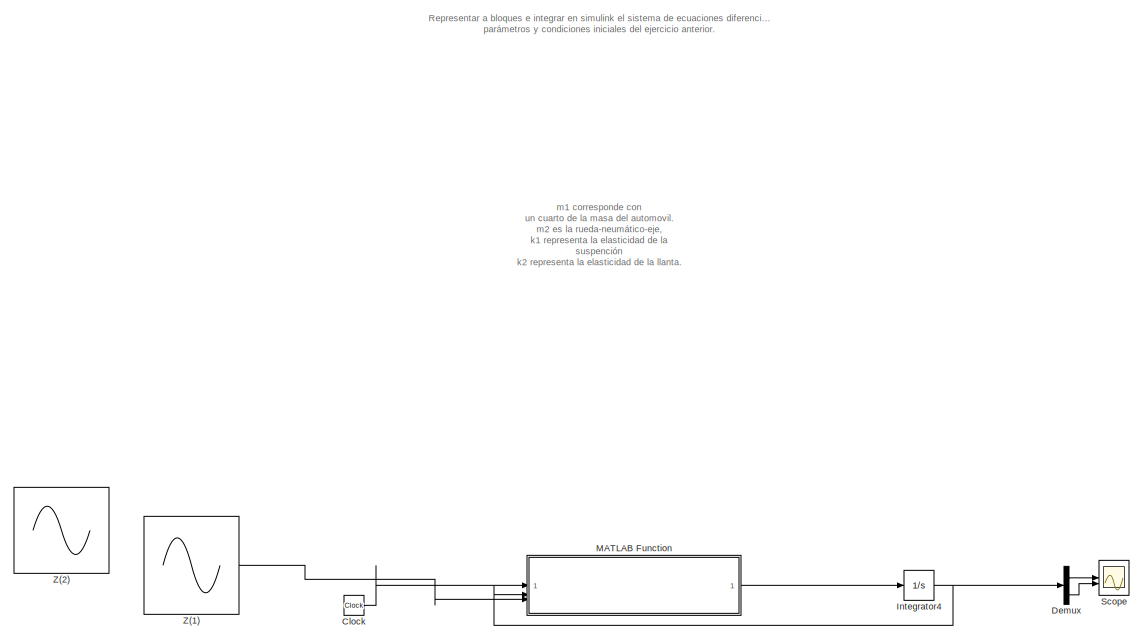
[diagram: root canvas - part 1/4, top left region]
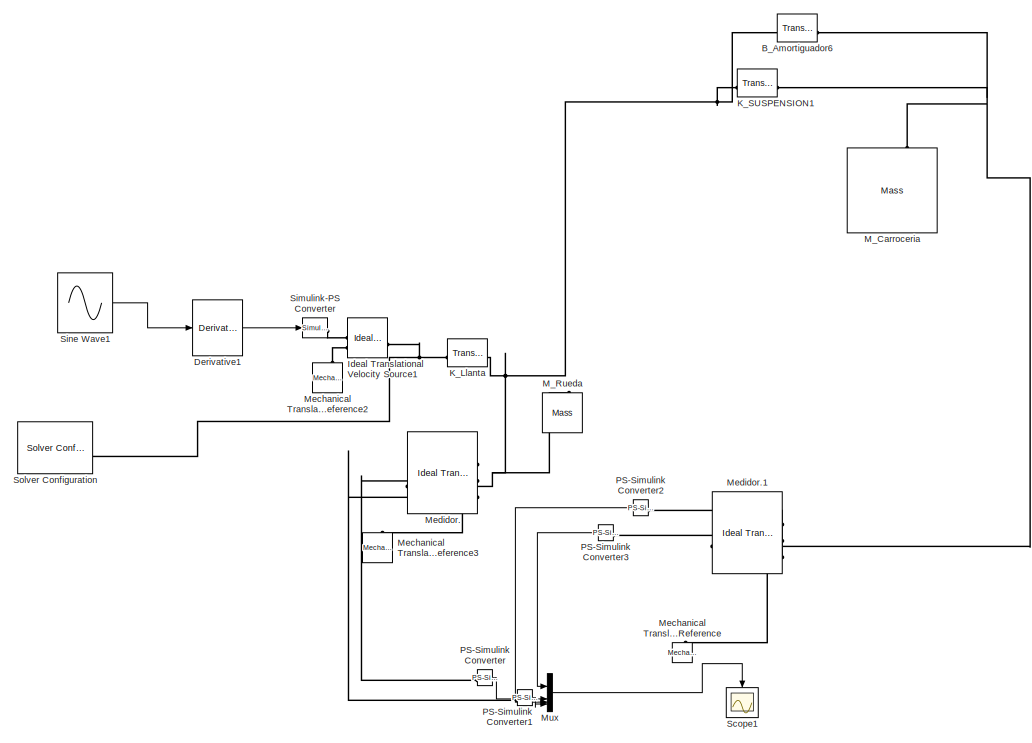
[diagram: root canvas - part 2/4, middle left region]
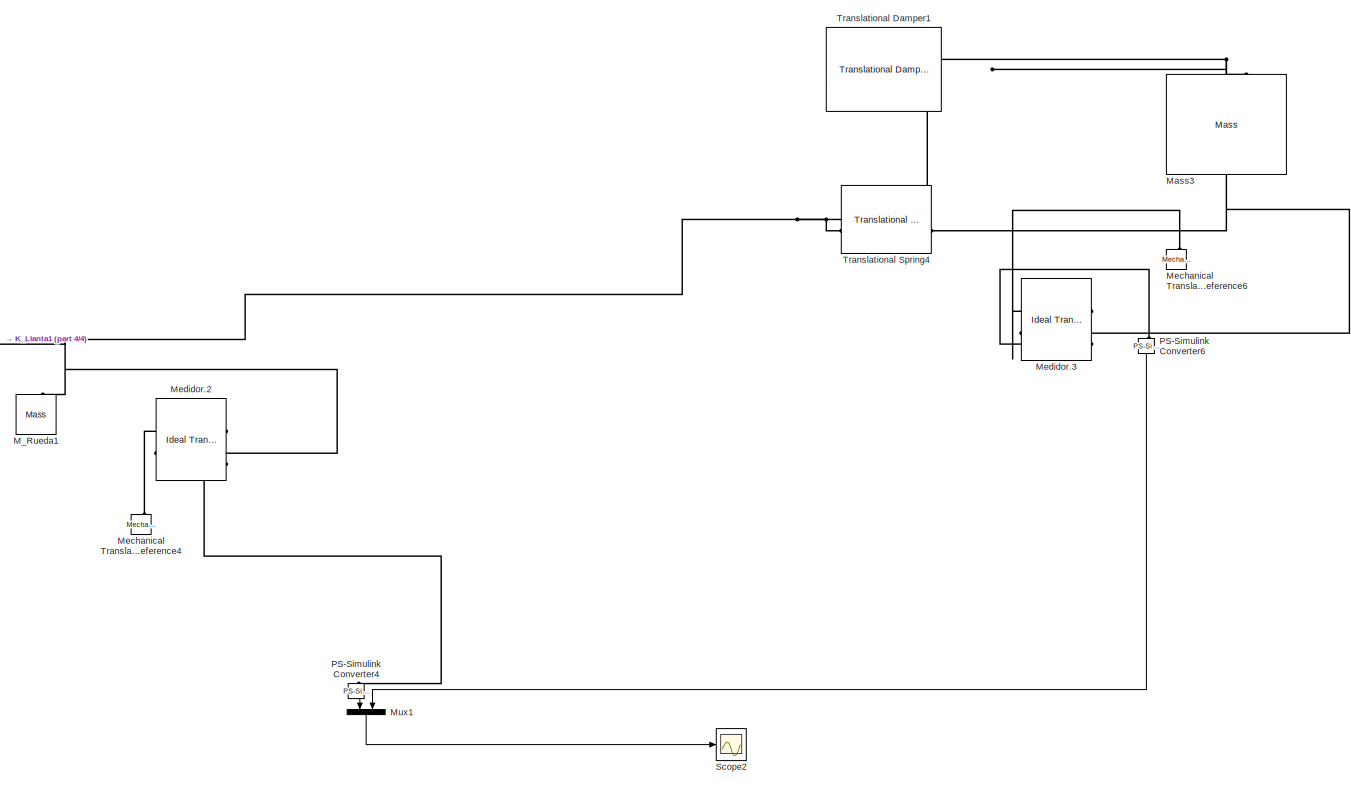
[diagram: root canvas - part 3/4, bottom center region]
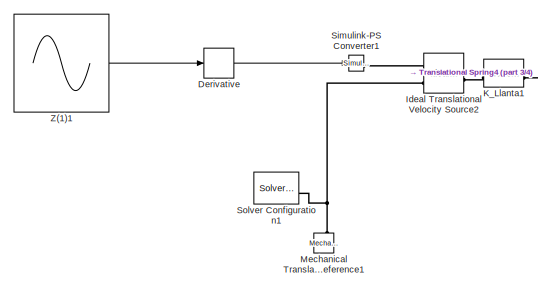
[diagram: root canvas - part 4/4, bottom left region]
MODEL slx_e33aabb2fccb
KIND model
CONFIG AbsTol = auto
CONFIG EnableMultiTasking = off
CONFIG FixedStep = auto
CONFIG MaxStep = auto
CONFIG MinStep = auto
CONFIG RelTol = 1e-3
CONFIG SampleTimeConstraint = Unconstrained
CONFIG SolverName = ode23t
CONFIG StartTime = 0.0
CONFIG StopTime = 10
BLOCK [Reference] B_Amortiguador6  REF=fl_lib/Mechanical/Translational
Elements/Translational Damper
  NameLocation = right
  SourceBlock = fl_lib/Mechanical/Translational\nElements/Translational Damper
  SourceType = Translational Damper
BLOCK [Clock] Clock
BLOCK [Demux] Demux
BLOCK [Derivative] Derivative
BLOCK [Derivative] Derivative1
BLOCK [Reference] Ideal Translational Velocity Source1  REF=fl_lib/Mechanical/Mechanical Sources/Ideal Translational
Velocity Source
  SourceBlock = fl_lib/Mechanical/Mechanical Sources/Ideal Translational\nVelocity Source
  SourceType = Ideal Translational\nVelocity Source
BLOCK [Reference] Ideal Translational Velocity Source2  REF=fl_lib/Mechanical/Mechanical Sources/Ideal Translational
Velocity Source
  SourceBlock = fl_lib/Mechanical/Mechanical Sources/Ideal Translational\nVelocity Source
  SourceType = Ideal Translational\nVelocity Source
BLOCK [Integrator] Integrator4
  InitialCondition = [0; 0; 0; 0]
BLOCK [Reference] K_Llanta  REF=fl_lib/Mechanical/Translational
Elements/Translational Spring
  SourceBlock = fl_lib/Mechanical/Translational\nElements/Translational Spring
  SourceType = Translational Spring
BLOCK [Reference] K_Llanta1  REF=fl_lib/Mechanical/Translational
Elements/Translational Spring
  SourceBlock = fl_lib/Mechanical/Translational\nElements/Translational Spring
  SourceType = Translational Spring
BLOCK [Reference] K_SUSPENSION1  REF=fl_lib/Mechanical/Translational
Elements/Translational Spring
  SourceBlock = fl_lib/Mechanical/Translational\nElements/Translational Spring
  SourceType = Translational Spring
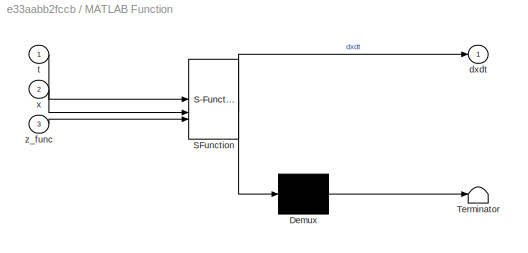
BLOCK [SubSystem] MATLAB Function
  ErrorFcn = Stateflow.Translate.translate
  PermitHierarchicalResolution = ExplicitOnly
  SFBlockType = MATLAB Function
  TreatAsAtomicUnit = on
BLOCK [Demux] MATLAB Function/ Demux 
  Outputs = 1
BLOCK [S-Function] MATLAB Function/ SFunction 
  EnableBusSupport = off
  FunctionName = sf_sfun
  PortCounts = [3 2]
  SFcnIsStateOwnerBlock = off
  SFunctionDeploymentMode = off
  Tag = Stateflow S-Function 2
BLOCK [Terminator] MATLAB Function/ Terminator 
BLOCK [Outport] MATLAB Function/dxdt
BLOCK [Inport] MATLAB Function/t
BLOCK [Inport] MATLAB Function/x
  Port = 2
BLOCK [Inport] MATLAB Function/z_func
  Port = 3
BLOCK [Reference] M_Carroceria  REF=fl_lib/Mechanical/Translational
Elements/Mass
  NameLocation = right
  SourceBlock = fl_lib/Mechanical/Translational\nElements/Mass
  SourceType = Mass
BLOCK [Reference] M_Rueda  REF=fl_lib/Mechanical/Translational
Elements/Mass
  NameLocation = right
  SourceBlock = fl_lib/Mechanical/Translational\nElements/Mass
  SourceType = Mass
BLOCK [Reference] M_Rueda1  REF=fl_lib/Mechanical/Translational
Elements/Mass
  NameLocation = right
  SourceBlock = fl_lib/Mechanical/Translational\nElements/Mass
  SourceType = Mass
BLOCK [Reference] Mass3  REF=fl_lib/Mechanical/Translational
Elements/Mass
  NameLocation = right
  SourceBlock = fl_lib/Mechanical/Translational\nElements/Mass
  SourceType = Mass
BLOCK [Reference] Mechanical Translational Reference  REF=fl_lib/Mechanical/Translational
Elements/Mechanical
Translational
Reference
  NameLocation = right
  SourceBlock = fl_lib/Mechanical/Translational\nElements/Mechanical\nTranslational\nReference
  SourceType = Mechanical\nTranslational\nReference
BLOCK [Reference] Mechanical Translational Reference1  REF=fl_lib/Mechanical/Translational
Elements/Mechanical
Translational
Reference
  NameLocation = right
  SourceBlock = fl_lib/Mechanical/Translational\nElements/Mechanical\nTranslational\nReference
  SourceType = Mechanical\nTranslational\nReference
BLOCK [Reference] Mechanical Translational Reference2  REF=fl_lib/Mechanical/Translational
Elements/Mechanical
Translational
Reference
  NameLocation = right
  SourceBlock = fl_lib/Mechanical/Translational\nElements/Mechanical\nTranslational\nReference
  SourceType = Mechanical\nTranslational\nReference
BLOCK [Reference] Mechanical Translational Reference3  REF=fl_lib/Mechanical/Translational
Elements/Mechanical
Translational
Reference
  NameLocation = right
  SourceBlock = fl_lib/Mechanical/Translational\nElements/Mechanical\nTranslational\nReference
  SourceType = Mechanical\nTranslational\nReference
BLOCK [Reference] Mechanical Translational Reference4  REF=fl_lib/Mechanical/Translational
Elements/Mechanical
Translational
Reference
  NameLocation = right
  SourceBlock = fl_lib/Mechanical/Translational\nElements/Mechanical\nTranslational\nReference
  SourceType = Mechanical\nTranslational\nReference
BLOCK [Reference] Mechanical Translational Reference6  REF=fl_lib/Mechanical/Translational
Elements/Mechanical
Translational
Reference
  NameLocation = right
  SourceBlock = fl_lib/Mechanical/Translational\nElements/Mechanical\nTranslational\nReference
  SourceType = Mechanical\nTranslational\nReference
BLOCK [Reference] Medidor.  REF=fl_lib/Mechanical/Mechanical Sensors/Ideal Translational
Motion Sensor
  NameLocation = top
  SourceBlock = fl_lib/Mechanical/Mechanical Sensors/Ideal Translational\nMotion Sensor
  SourceType = Ideal Translational\nMotion Sensor
BLOCK [Reference] Medidor.1  REF=fl_lib/Mechanical/Mechanical Sensors/Ideal Translational
Motion Sensor
  NameLocation = top
  SourceBlock = fl_lib/Mechanical/Mechanical Sensors/Ideal Translational\nMotion Sensor
  SourceType = Ideal Translational\nMotion Sensor
BLOCK [Reference] Medidor.2  REF=fl_lib/Mechanical/Mechanical Sensors/Ideal Translational
Motion Sensor
  NameLocation = top
  SourceBlock = fl_lib/Mechanical/Mechanical Sensors/Ideal Translational\nMotion Sensor
  SourceType = Ideal Translational\nMotion Sensor
BLOCK [Reference] Medidor.3  REF=fl_lib/Mechanical/Mechanical Sensors/Ideal Translational
Motion Sensor
  NameLocation = top
  SourceBlock = fl_lib/Mechanical/Mechanical Sensors/Ideal Translational\nMotion Sensor
  SourceType = Ideal Translational\nMotion Sensor
BLOCK [Mux] Mux
  DisplayOption = bar
BLOCK [Mux] Mux1
  DisplayOption = bar
  Inputs = 2
  NameLocation = left
BLOCK [Reference] PS-Simulink Converter  REF=nesl_utility/PS-Simulink
Converter
  SourceBlock = nesl_utility/PS-Simulink\nConverter
  SourceType = PS-Simulink\nConverter
BLOCK [Reference] PS-Simulink Converter1  REF=nesl_utility/PS-Simulink
Converter
  SourceBlock = nesl_utility/PS-Simulink\nConverter
  SourceType = PS-Simulink\nConverter
BLOCK [Reference] PS-Simulink Converter2  REF=nesl_utility/PS-Simulink
Converter
  NameLocation = top
  SourceBlock = nesl_utility/PS-Simulink\nConverter
  SourceType = PS-Simulink\nConverter
BLOCK [Reference] PS-Simulink Converter3  REF=nesl_utility/PS-Simulink
Converter
  NameLocation = top
  SourceBlock = nesl_utility/PS-Simulink\nConverter
  SourceType = PS-Simulink\nConverter
BLOCK [Reference] PS-Simulink Converter4  REF=nesl_utility/PS-Simulink
Converter
  NameLocation = left
  SourceBlock = nesl_utility/PS-Simulink\nConverter
  SourceType = PS-Simulink\nConverter
BLOCK [Reference] PS-Simulink Converter6  REF=nesl_utility/PS-Simulink
Converter
  NameLocation = left
  SourceBlock = nesl_utility/PS-Simulink\nConverter
  SourceType = PS-Simulink\nConverter
BLOCK [Scope] Scope
  ActiveDisplayYMaximum = 0.068675886807107581
  ActiveDisplayYMinimum = -0.061836360748085892
  Floating = off
  GraphicalSettings = {"Style":{"BackgroundColor":[0.12941176470588237,0.12941176470588237,0.12941176470588237],"AxesColor":[0.07058823529411765,0.07058823529411765,0.07058823529411765],"LabelsColor":[0.8509803921568627,0.8509803921568627,0.8509803921568627],"PreserveColors":false,"Visible":[true,true],"LineStyle":["-","-"],"LineWidth":[1.5,1.5],"BarWidth":[0.9,0.9],"LineColor":["auto","auto"],"LineFaceAlpha":[1,1],"Li...<+2118ch>
  MultipleDisplayCache = [{"MaxYLimMag":0.01417703135031353,"MaxYLimReal":0.068675886807107581,"MinYLimMag":0,"MinYLimReal":-0.061836360748085892,"PlotAsMagnitudePhase":false,"ShowGrid":true,"ShowLegend":true,"Title":"%<SignalLabel>","YLabel":""}]
  NumInputPorts = 2
  ScopeFrameLocation = window
  ShowLegend = on
  WasSavedAsWebScope = on
  WindowPosition = [133.000000,205.000000,560.000000,443.000000,]
BLOCK [Scope] Scope1
  ActiveDisplayYMaximum = 1.2249002368293782
  ActiveDisplayYMinimum = -1.0241021314644039
  DataLoggingVariableName = ScopeData1
  Floating = off
  GraphicalSettings = {"Style":{"BackgroundColor":[0.12941176470588237,0.12941176470588237,0.12941176470588237],"AxesColor":[0.07058823529411765,0.07058823529411765,0.07058823529411765],"LabelsColor":[0.8509803921568627,0.8509803921568627,0.8509803921568627],"PreserveColors":false,"Visible":[true,true,false,false],"LineStyle":["-","-","-","-"],"LineWidth":[1.5,1.5,1.5,1.5],"BarWidth":[0.9,0.9,0.9,0.9],"LineColor":["aut...<+2462ch>
  MultipleDisplayCache = [{"MaxYLimMag":1.2249002368293782,"MaxYLimReal":1.2249002368293782,"MinYLimMag":0,"MinYLimReal":-1.0241021314644039,"PlotAsMagnitudePhase":false,"ShowGrid":true,"ShowLegend":true,"Title":"%<SignalLabel>","YLabel":""}]
  NameLocation = left
  NumInputPorts = 1
  ScopeFrameLocation = window
  ShowLegend = on
  WasSavedAsWebScope = on
  WindowPosition = [247.000000,290.000000,560.000000,420.000000,]
BLOCK [Scope] Scope2
  ActiveDisplayYMaximum = 0.10067538321812189
  ActiveDisplayYMinimum = -0.12212269763999509
  DataLoggingVariableName = ScopeData2
  Floating = off
  GraphicalSettings = {"Style":{"BackgroundColor":[0.12941176470588237,0.12941176470588237,0.12941176470588237],"AxesColor":[0.07058823529411765,0.07058823529411765,0.07058823529411765],"LabelsColor":[0.8509803921568627,0.8509803921568627,0.8509803921568627],"PreserveColors":false,"Visible":[true,true],"LineStyle":["-","-"],"LineWidth":[1.5,1.5],"BarWidth":[0.9,0.9],"LineColor":["auto","auto"],"LineFaceAlpha":[1,1],"Li...<+2178ch>
  MultipleDisplayCache = [{"MaxYLimMag":0.080687265846649786,"MaxYLimReal":0.10067538321812189,"MinYLimMag":0,"MinYLimReal":-0.12212269763999509,"PlotAsMagnitudePhase":false,"ShowGrid":true,"ShowLegend":true,"Title":"%<SignalLabel>","YLabel":""}]
  NumInputPorts = 1
  ScopeFrameLocation = window
  ShowLegend = on
  WasSavedAsWebScope = on
  WindowPosition = [717.000000,168.000000,560.000000,420.000000,]
BLOCK [Reference] Simulink-PS Converter  REF=nesl_utility/Simulink-PS
Converter
  SourceBlock = nesl_utility/Simulink-PS\nConverter
  SourceType = Simulink-PS\nConverter
BLOCK [Reference] Simulink-PS Converter1  REF=nesl_utility/Simulink-PS
Converter
  SourceBlock = nesl_utility/Simulink-PS\nConverter
  SourceType = Simulink-PS\nConverter
BLOCK [Sin] Sine Wave1
  Amplitude = 0.05
  Frequency = 20*pi
  SampleTime = 0
BLOCK [Reference] Solver Configuration  REF=nesl_utility/Solver
Configuration
  SourceBlock = nesl_utility/Solver\nConfiguration
  SourceType = Solver\nConfiguration
BLOCK [Reference] Solver Configuration1  REF=nesl_utility/Solver
Configuration
  SourceBlock = nesl_utility/Solver\nConfiguration
  SourceType = Solver\nConfiguration
BLOCK [Reference] Translational Damper1  REF=fl_lib/Mechanical/Translational
Elements/Translational Damper
  NameLocation = top
  SourceBlock = fl_lib/Mechanical/Translational\nElements/Translational Damper
  SourceType = Translational Damper
BLOCK [Reference] Translational Spring4  REF=fl_lib/Mechanical/Translational
Elements/Translational Spring
  NameLocation = top
  SourceBlock = fl_lib/Mechanical/Translational\nElements/Translational Spring
  SourceType = Translational Spring
BLOCK [Sin] Z(1)
  Amplitude = 0.05
  Frequency = 0.5*pi
  SampleTime = 0
BLOCK [Sin] Z(1)1
  Amplitude = 0.05
  Frequency = 0.5*pi
  SampleTime = 0
BLOCK [Sin] Z(2)
  Amplitude = 0.05
  Frequency = 62.8319
  SampleTime = 0
ANNOTATION (root): m1 corresponde con un cuarto de la masa del automovil. m2 es la rueda-neumático-eje, k1 representa la elasticidad de la suspención k2 representa la elasticidad de la llanta. z(t) es una entrada que es el desplazamiento vertical producido por la superficie del camino. f es la fuerza del actuador aplicada entre la carrocería del automóvil
ANNOTATION (root): Representar a bloques e integrar en simulink el sistema de ecuaciones diferenciales (1), tomando los mismos parámetros y condiciones iniciales del ejercicio anterior.
LINE Clock:1 -> MATLAB Function:1
LINE Demux:1 -> Scope:1
LINE Demux:3 -> Scope:2
LINE Derivative1:1 -> Simulink-PS Converter:1
LINE Derivative:1 -> Simulink-PS Converter1:1
NET Integrator4:1 -> Demux:1, MATLAB Function:2
LINE MATLAB Function:1 -> Integrator4:1
LINE Mux1:1 -> Scope2:1
LINE Mux:1 -> Scope1:1
LINE PS-Simulink Converter1:1 -> Mux:4
LINE PS-Simulink Converter2:1 -> Mux:3
LINE PS-Simulink Converter3:1 -> Mux:1
LINE PS-Simulink Converter4:1 -> Mux1:1
LINE PS-Simulink Converter6:1 -> Mux1:2
LINE PS-Simulink Converter:1 -> Mux:2
LINE Sine Wave1:1 -> Derivative1:1
LINE Z(1)1:1 -> Derivative:1
LINE Z(1):1 -> MATLAB Function:3
PNET net1: B_Amortiguador6:LConn1 -- K_Llanta:RConn1 -- K_SUSPENSION1:LConn1 -- M_Rueda:LConn1 -- Medidor.:LConn1
PNET net2: B_Amortiguador6:RConn1 -- K_SUSPENSION1:RConn1 -- M_Carroceria:LConn1 -- Medidor.1:LConn1
PNET net3: Ideal Translational Velocity Source1:LConn1 -- K_Llanta:LConn1 -- Solver Configuration:RConn1
PLINE Ideal Translational Velocity Source1:RConn1 -- Simulink-PS Converter:RConn1
PLINE Ideal Translational Velocity Source1:RConn2 -- Mechanical Translational Reference2:LConn1
PLINE Ideal Translational Velocity Source2:LConn1 -- K_Llanta1:LConn1
PLINE Ideal Translational Velocity Source2:RConn1 -- Simulink-PS Converter1:RConn1
PNET net4: Ideal Translational Velocity Source2:RConn2 -- Mechanical Translational Reference1:LConn1 -- Solver Configuration1:RConn1
PNET net5: K_Llanta1:RConn1 -- M_Rueda1:LConn1 -- Medidor.2:LConn1 -- Translational Damper1:RConn1 -- Translational Spring4:RConn1
PNET net6: Mass3:LConn1 -- Medidor.3:LConn1 -- Translational Damper1:LConn1 -- Translational Spring4:LConn1
PLINE Mechanical Translational Reference3:LConn1 -- Medidor.:RConn1
PLINE Mechanical Translational Reference4:LConn1 -- Medidor.2:RConn1
PLINE Mechanical Translational Reference6:LConn1 -- Medidor.3:RConn1
PLINE Mechanical Translational Reference:LConn1 -- Medidor.1:RConn1
PLINE Medidor.1:RConn2 -- PS-Simulink Converter3:LConn1
PLINE Medidor.1:RConn3 -- PS-Simulink Converter2:LConn1
PLINE Medidor.2:RConn3 -- PS-Simulink Converter4:LConn1
PLINE Medidor.3:RConn3 -- PS-Simulink Converter6:LConn1
PLINE Medidor.:RConn2 -- PS-Simulink Converter:LConn1
PLINE Medidor.:RConn3 -- PS-Simulink Converter1:LConn1
note: NET lines group one-source signal fan-out (src -> all destinations, sorted); 1:1 wires keep LINE; PNET lines group multi-terminal physical nets as a canonical sorted terminal list (undirected conserving connections); 2-terminal nets keep the pairwise PLINE form
CHART MATLAB Function states=1 transitions=1
  STATE_LABEL 'eML_blk_kernel()'
  STATE_LABEL 'SCRIPT:\n\n\nfunction dxdt = Carro(t, x, z_func)\n\n    m1 = 290; b1 = 1000; m2 = 59; k1 = 16182; k2 = 19000; f = 0;\n    \n    x1 = x(1); v1 = x(2); x2 = x(3); v2 = x(4);\n    \n    z = z_func;\n    \n    dxdt = zeros(4,1);\n    dxdt(1) = v1;\n    dxdt(2) = (1/m1) * (-b1*v1 + b1*v2 - k1*x1 + k1*x2 + f);\n    dxdt(3) = v2;\n    dxdt(4) = (1/m2) * (b1*v1 - b1*v2 + k1*x1 - (k1+k2)*x2 - f + k2*z);\nend\n'
CHART  states=0 transitions=0
